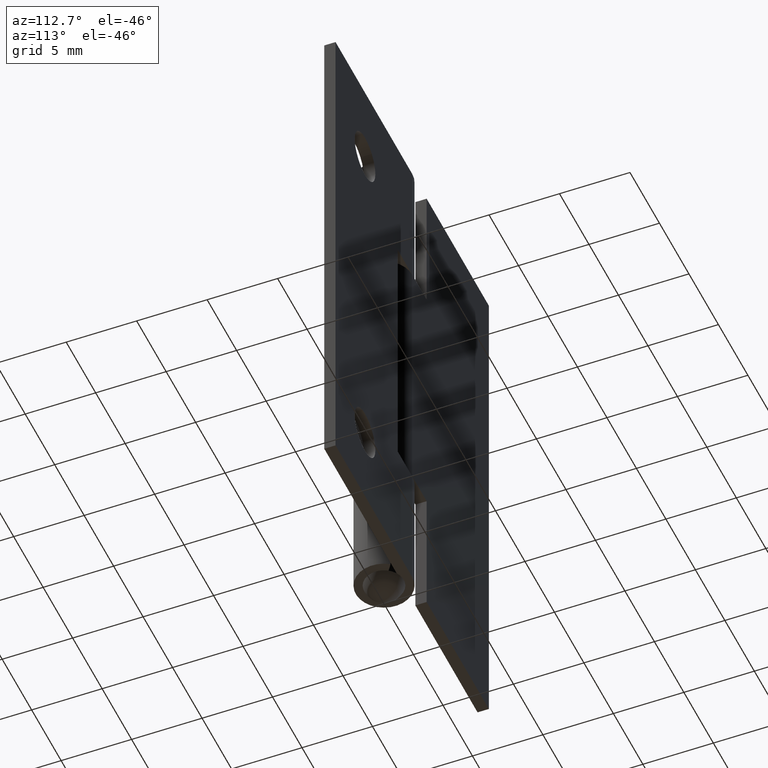
[diagram: clean part render]
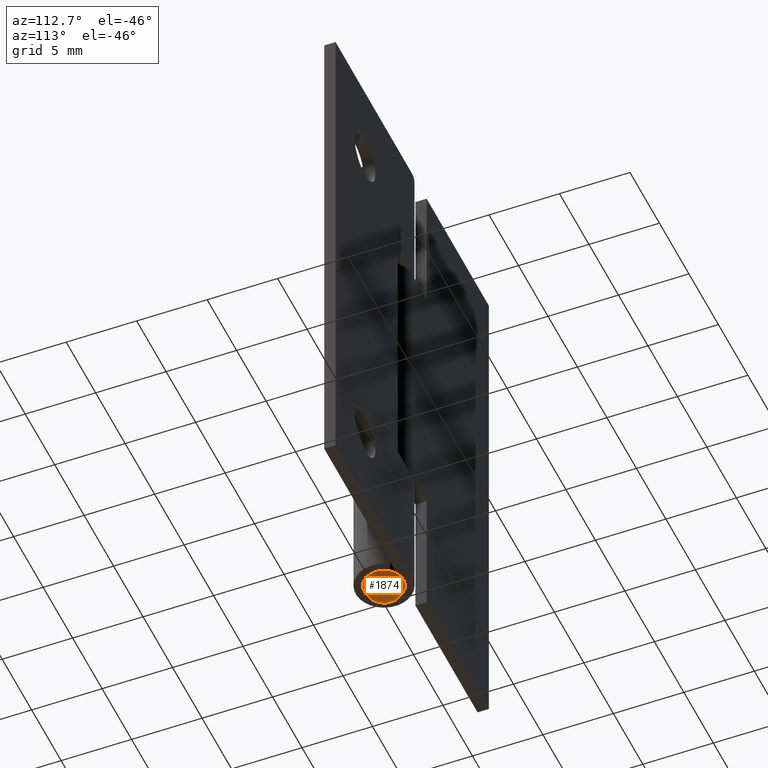
[diagram: same view with one face highlighted and labeled with its STEP entity id]
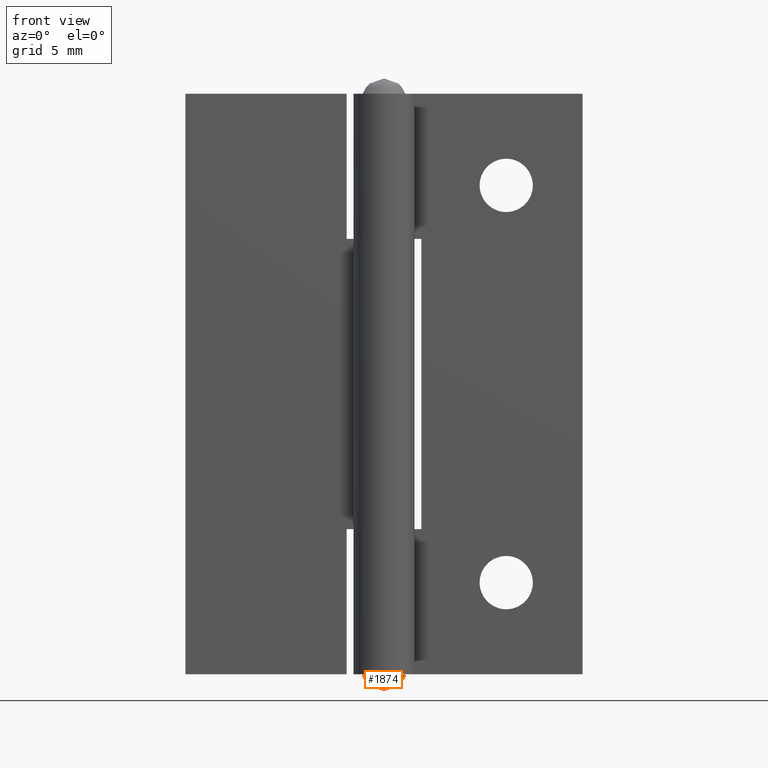
[diagram: same view with one face highlighted and labeled with its STEP entity id]
A machine part, auxiliary view. The second image highlights one B-rep face of the part: STEP entity #1874.
A second angle (front view) of the same face is appended — the face is thin or edge-on in the first view.
In plain terms, the highlighted face is a freeform B-spline surface patch.
Its self-contained STEP definition (entity closure, byte-faithful):
#1793=CARTESIAN_POINT('',(1.400000000000000,0.0,0.0));
#1794=VERTEX_POINT('',#1793);
#1795=CARTESIAN_POINT('',(-1.400000000000000,0.0,1.165734E-015));
#1796=VERTEX_POINT('',#1795);
#1797=CARTESIAN_POINT('',(1.400000000000000,0.0,0.0));
#1798=CARTESIAN_POINT('',(1.400146157544106,-0.166100538869871,1.542926E-015));
#1799=CARTESIAN_POINT('',(1.353561260865993,-0.423685910711604,1.135926E-015));
#1800=CARTESIAN_POINT('',(1.181944380094764,-0.775381670308939,1.103378E-015));
#1801=CARTESIAN_POINT('',(0.993412657458091,-1.002248276707576,1.199436E-015));
#1802=CARTESIAN_POINT('',(0.753447062361834,-1.189471015118882,1.161233E-015));
#1803=CARTESIAN_POINT('',(0.472171466075258,-1.335503145988967,1.166994E-015));
#1804=CARTESIAN_POINT('',(0.132503626048464,-1.409556175327865,1.165393E-015));
#1805=CARTESIAN_POINT('',(-0.218419087025841,-1.394439352280205,1.165776E-015));
#1806=CARTESIAN_POINT('',(-0.507858231619519,-1.316254841146070,1.165734E-015));
#1807=CARTESIAN_POINT('',(-0.804148974476172,-1.162555384081536,1.165734E-015));
#1808=CARTESIAN_POINT('',(-1.035041666005256,-0.960910559560091,1.165734E-015));
#1809=CARTESIAN_POINT('',(-1.223589274487471,-0.699994806682387,1.165734E-015));
#1810=CARTESIAN_POINT('',(-1.361009445728809,-0.395114161166610,1.165734E-015));
#1811=CARTESIAN_POINT('',(-1.400062313279175,-0.143171531397205,1.165734E-015));
#1812=CARTESIAN_POINT('',(-1.400000000000000,0.0,1.165734E-015));
#1813=B_SPLINE_CURVE_WITH_KNOTS('',3,(#1797,#1798,#1799,#1800,#1801,#1802,#1803,#1804,#1805,#1806,#1807,#1808,#1809,#1810,#1811,#1812),.UNSPECIFIED.,.F.,.U.,(4,1,1,1,1,1,1,1,1,1,1,1,1,4),(0.000000155285167,0.498222818819354,0.773123850482640,1.168288427747703,1.374464472578189,1.683719580392296,2.113241407850512,2.405274078179493,2.731713622336594,3.006613777434008,3.401778564041141,3.642313449470155,3.968757128841999,4.398257312094822),.UNSPECIFIED.);
#1814=EDGE_CURVE('',#1794,#1796,#1813,.T.);
#1816=CARTESIAN_POINT('',(-1.400000000000000,0.0,1.165734E-015));
#1817=CARTESIAN_POINT('',(-1.400110886523813,0.166090873356466,1.165734E-015));
#1818=CARTESIAN_POINT('',(-1.353606402690152,0.423704427447602,1.165734E-015));
#1819=CARTESIAN_POINT('',(-1.204621703198651,0.728808467582595,1.165734E-015));
#1820=CARTESIAN_POINT('',(-1.060809993984582,0.922719009218902,1.165734E-015));
#1821=CARTESIAN_POINT('',(-0.888187787275779,1.091165493908674,1.165734E-015));
#1822=CARTESIAN_POINT('',(-0.703125593070643,1.218127931199892,1.165734E-015));
#1823=CARTESIAN_POINT('',(-0.484557393896009,1.319862826408637,1.165734E-015));
#1824=CARTESIAN_POINT('',(-0.252171311350415,1.385713742386544,1.165734E-015));
#1825=CARTESIAN_POINT('',(-0.011385852744025,1.406444740989063,1.165734E-015));
#1826=CARTESIAN_POINT('',(0.251805414857186,1.385420872343554,1.165734E-015));
#1827=CARTESIAN_POINT('',(0.485592273200788,1.322268721974371,1.165735E-015));
#1828=CARTESIAN_POINT('',(0.728135776825420,1.203864637332788,1.169527E-015));
#1829=CARTESIAN_POINT('',(0.975391847917459,1.025263012031090,1.146096E-015));
#1830=CARTESIAN_POINT('',(1.197569001548494,0.757852458701165,1.224468E-015));
#1831=CARTESIAN_POINT('',(1.360992882151689,0.395106279121505,9.775013E-016));
#1832=CARTESIAN_POINT('',(1.400073739559936,0.143174262832936,1.780018E-015));
#1833=CARTESIAN_POINT('',(1.400000000000000,0.0,0.0));
#1834=B_SPLINE_CURVE_WITH_KNOTS('',3,(#1816,#1817,#1818,#1819,#1820,#1821,#1822,#1823,#1824,#1825,#1826,#1827,#1828,#1829,#1830,#1831,#1832,#1833),.UNSPECIFIED.,.F.,.U.,(4,1,1,1,1,1,1,1,1,1,1,1,1,1,1,4),(0.000000155284613,0.498222818818938,0.773123850482291,1.013661425013849,1.219833708327400,1.494733504293851,1.683719580392167,1.941440049892420,2.216284732195292,2.405274078179454,2.731713622336585,2.937895333213531,3.212789741347976,3.642313449470161,3.968757128841998,4.398257312094822),.UNSPECIFIED.);
#1835=EDGE_CURVE('',#1796,#1794,#1834,.T.);
#1846=CARTESIAN_POINT('',(-1.043251628907827,1.043251628907827,0.596842105263159));
#1847=CARTESIAN_POINT('',(-0.714298412585541,1.428596825171082,0.093333333333334));
#1848=CARTESIAN_POINT('',(0.714298412585541,1.428596825171082,0.093333333333334));
#1849=CARTESIAN_POINT('',(1.043251628907827,1.043251628907827,0.596842105263159));
#1850=CARTESIAN_POINT('',(-1.428596825171082,0.714298412585541,0.093333333333334));
#1851=CARTESIAN_POINT('',(-1.132673197099936,1.132673197099936,-1.000000000000010));
#1852=CARTESIAN_POINT('',(1.132673197099936,1.132673197099936,-1.000000000000010));
#1853=CARTESIAN_POINT('',(1.428596825171082,0.714298412585541,0.093333333333334));
#1854=CARTESIAN_POINT('',(-1.428596825171082,-0.714298412585541,0.093333333333334));
#1855=CARTESIAN_POINT('',(-1.132673197099936,-1.132673197099936,-1.000000000000010));
#1856=CARTESIAN_POINT('',(1.132673197099936,-1.132673197099936,-1.000000000000010));
#1857=CARTESIAN_POINT('',(1.428596825171082,-0.714298412585541,0.093333333333334));
#1858=CARTESIAN_POINT('',(-1.043251628907827,-1.043251628907827,0.596842105263159));
#1859=CARTESIAN_POINT('',(-0.714298412585541,-1.428596825171082,0.093333333333334));
#1860=CARTESIAN_POINT('',(0.714298412585541,-1.428596825171082,0.093333333333334));
#1861=CARTESIAN_POINT('',(1.043251628907827,-1.043251628907827,0.596842105263159));
#1869=(BOUNDED_SURFACE()B_SPLINE_SURFACE(2,2,((#1846,#1850,#1854,#1858),(#1847,#1851,#1855,#1859),(#1848,#1852,#1856,#1860),(#1849,#1853,#1857,#1861)),.UNSPECIFIED.,.F.,.F.,.U.)GEOMETRIC_REPRESENTATION_ITEM()QUASI_UNIFORM_SURFACE()RATIONAL_B_SPLINE_SURFACE(((2.171428571428590,1.585714285714295,1.585714285714295,2.171428571428590),(1.585714285714295,1.0,1.0,1.585714285714295),(1.585714285714295,1.0,1.0,1.585714285714295),(2.171428571428590,1.585714285714295,1.585714285714295,2.171428571428590)))REPRESENTATION_ITEM('')SURFACE());
#1870=ORIENTED_EDGE('',*,*,#1835,.T.);
#1871=ORIENTED_EDGE('',*,*,#1814,.T.);
#1872=EDGE_LOOP('',(#1870,#1871));
#1873=FACE_OUTER_BOUND('',#1872,.T.);
#1874=ADVANCED_FACE('',(#1873),#1869,.T.);